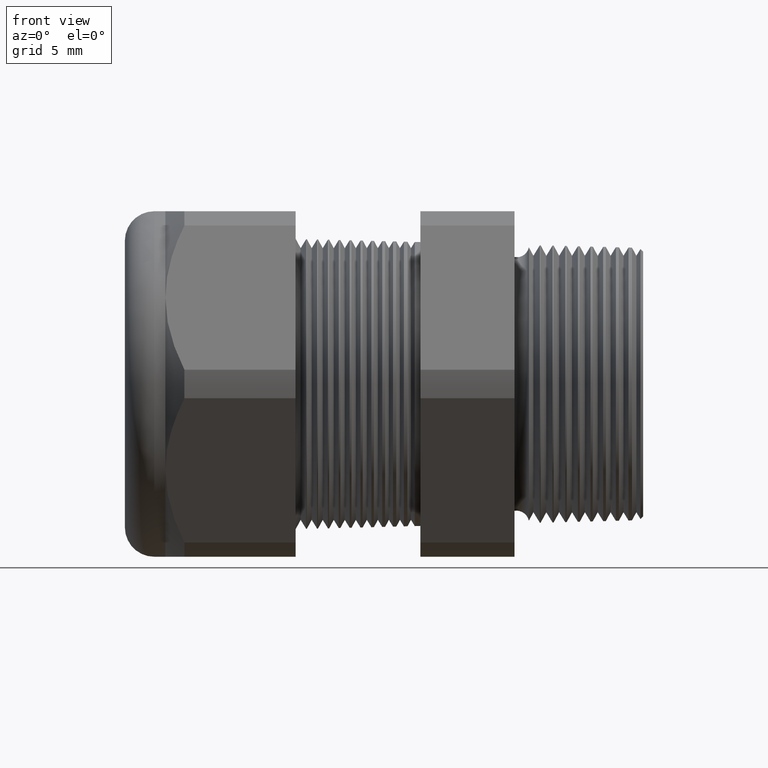
[diagram: clean part render]
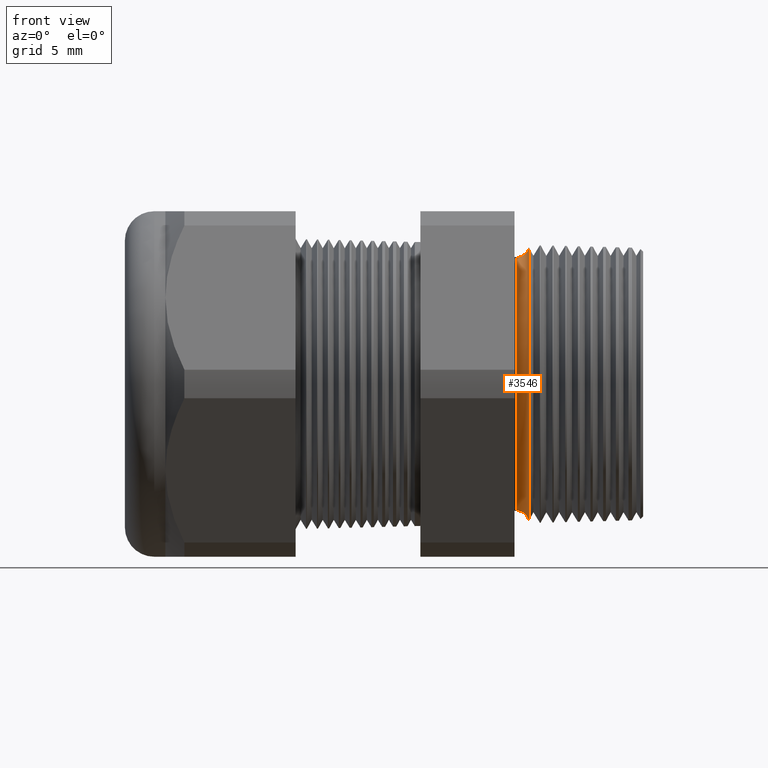
[diagram: same view with one face highlighted and labeled with its STEP entity id]
A machine part, front view. The second image highlights one B-rep face of the part: STEP entity #3546.
In plain terms, the highlighted toroidal blend (fillet) surface has major radius 9.637 mm and minor (blend) radius 0.889 mm.
Its self-contained STEP definition (entity closure, byte-faithful):
#807 = CARTESIAN_POINT ( 'NONE',  ( -0.2708463023710465100, 0.0000000000000000000, 0.3717578769442108600 ) ) ;
#808 = DIRECTION ( 'NONE',  ( 0.0000000000000000000, 1.224646799147352700E-016, 1.000000000000000000 ) ) ;
#809 = DIRECTION ( 'NONE',  ( 0.0000000000000000000, 1.000000000000000000, -1.224646799147353200E-016 ) ) ;
#810 = CARTESIAN_POINT ( 'NONE',  ( -0.3049999999999999400, 4.646408372336645900E-017, 0.3794080363066033600 ) ) ;
#811 = AXIS2_PLACEMENT_3D ( 'NONE', #810, #809, #808 ) ;
#812 = CIRCLE ( 'NONE', #811, 0.03499999999999996900 ) ;
#855 = DIRECTION ( 'NONE',  ( 0.0000000000000000000, 0.0000000000000000000, -1.000000000000000000 ) ) ;
#856 = DIRECTION ( 'NONE',  ( 1.000000000000000000, 0.0000000000000000000, 0.0000000000000000000 ) ) ;
#857 = CARTESIAN_POINT ( 'NONE',  ( -0.3049999999999999400, 0.0000000000000000000, 0.0000000000000000000 ) ) ;
#858 = AXIS2_PLACEMENT_3D ( 'NONE', #857, #856, #855 ) ;
#859 = CIRCLE ( 'NONE', #858, 0.3444080363066033800 ) ;
#860 = DIRECTION ( 'NONE',  ( 0.0000000000000000000, 0.0000000000000000000, -1.000000000000000000 ) ) ;
#861 = DIRECTION ( 'NONE',  ( 1.000000000000000000, 0.0000000000000000000, 0.0000000000000000000 ) ) ;
#862 = AXIS2_PLACEMENT_3D ( 'NONE', #864, #861, #860 ) ;
#863 = TOROIDAL_SURFACE ( 'NONE', #862, 0.3794080363066033600, 0.03499999999999994800 ) ;
#864 = CARTESIAN_POINT ( 'NONE',  ( -0.3049999999999999400, 0.0000000000000000000, 0.0000000000000000000 ) ) ;
#870 = FACE_OUTER_BOUND ( 'NONE', #3547, .T. ) ;
#904 = AXIS2_PLACEMENT_3D ( 'NONE', #910, #967, #966 ) ;
#905 = CIRCLE ( 'NONE', #904, 0.3717578769442108600 ) ;
#910 = CARTESIAN_POINT ( 'NONE',  ( -0.2708463023710465100, 0.0000000000000000000, 0.0000000000000000000 ) ) ;
#924 = CARTESIAN_POINT ( 'NONE',  ( -0.3049999999999999400, 4.217781992635073200E-017, 0.3444080363066033800 ) ) ;
#930 = CARTESIAN_POINT ( 'NONE',  ( -0.3049999999999999400, 0.0000000000000000000, -0.3444080363066033800 ) ) ;
#931 = CARTESIAN_POINT ( 'NONE',  ( -0.2708463023710465100, 4.552720940575434700E-017, -0.3717578769442108600 ) ) ;
#932 = DIRECTION ( 'NONE',  ( 0.0000000000000000000, 0.0000000000000000000, -1.000000000000000000 ) ) ;
#933 = DIRECTION ( 'NONE',  ( 0.0000000000000000000, -1.000000000000000000, 0.0000000000000000000 ) ) ;
#934 = CARTESIAN_POINT ( 'NONE',  ( -0.3049999999999999400, 0.0000000000000000000, -0.3794080363066033600 ) ) ;
#935 = AXIS2_PLACEMENT_3D ( 'NONE', #934, #933, #932 ) ;
#936 = CIRCLE ( 'NONE', #935, 0.03499999999999996900 ) ;
#966 = DIRECTION ( 'NONE',  ( 0.0000000000000000000, 0.0000000000000000000, 1.000000000000000000 ) ) ;
#967 = DIRECTION ( 'NONE',  ( 1.000000000000000000, 0.0000000000000000000, 0.0000000000000000000 ) ) ;
#3542 = EDGE_CURVE ( 'NONE', #3543, #3587, #812, .T. ) ;
#3543 = VERTEX_POINT ( 'NONE', #807 ) ;
#3546 = ADVANCED_FACE ( 'NONE', ( #870 ), #863, .F. ) ;
#3547 = EDGE_LOOP ( 'NONE', ( #3548, #3549, #3551, #3604 ) ) ;
#3548 = ORIENTED_EDGE ( 'NONE', *, *, #3542, .T. ) ;
#3549 = ORIENTED_EDGE ( 'NONE', *, *, #3550, .T. ) ;
#3550 = EDGE_CURVE ( 'NONE', #3587, #3584, #859, .T. ) ;
#3551 = ORIENTED_EDGE ( 'NONE', *, *, #3582, .F. ) ;
#3582 = EDGE_CURVE ( 'NONE', #3583, #3584, #936, .T. ) ;
#3583 = VERTEX_POINT ( 'NONE', #931 ) ;
#3584 = VERTEX_POINT ( 'NONE', #930 ) ;
#3587 = VERTEX_POINT ( 'NONE', #924 ) ;
#3604 = ORIENTED_EDGE ( 'NONE', *, *, #3605, .F. ) ;
#3605 = EDGE_CURVE ( 'NONE', #3543, #3583, #905, .T. ) ;